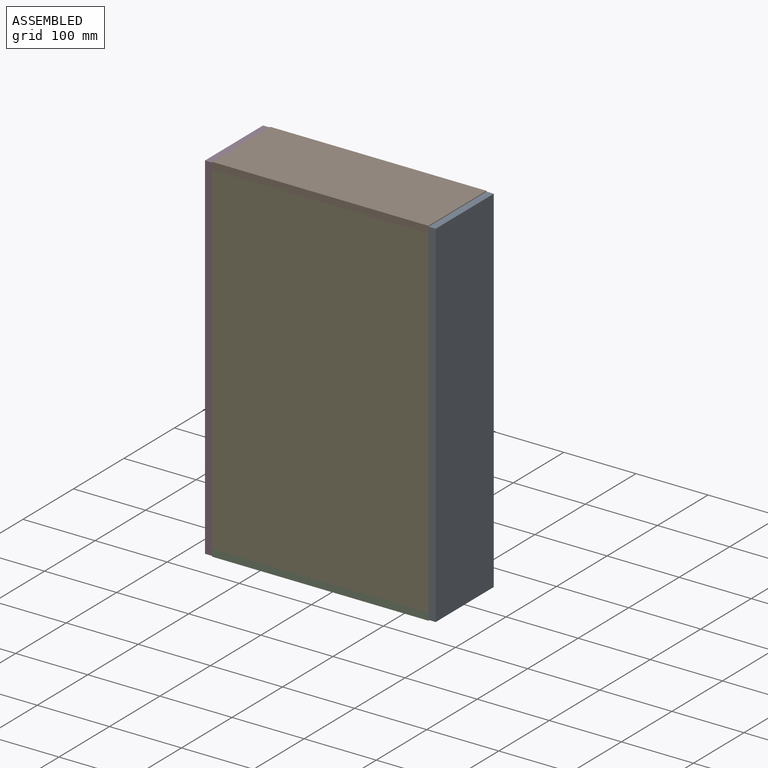
[diagram: assembled view]
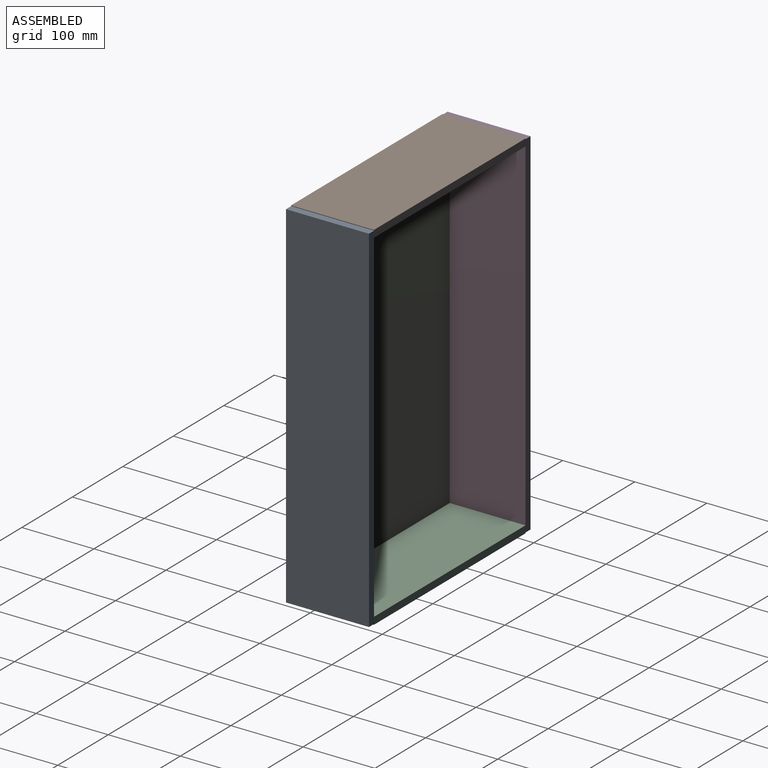
[diagram: assembled view, second angle]
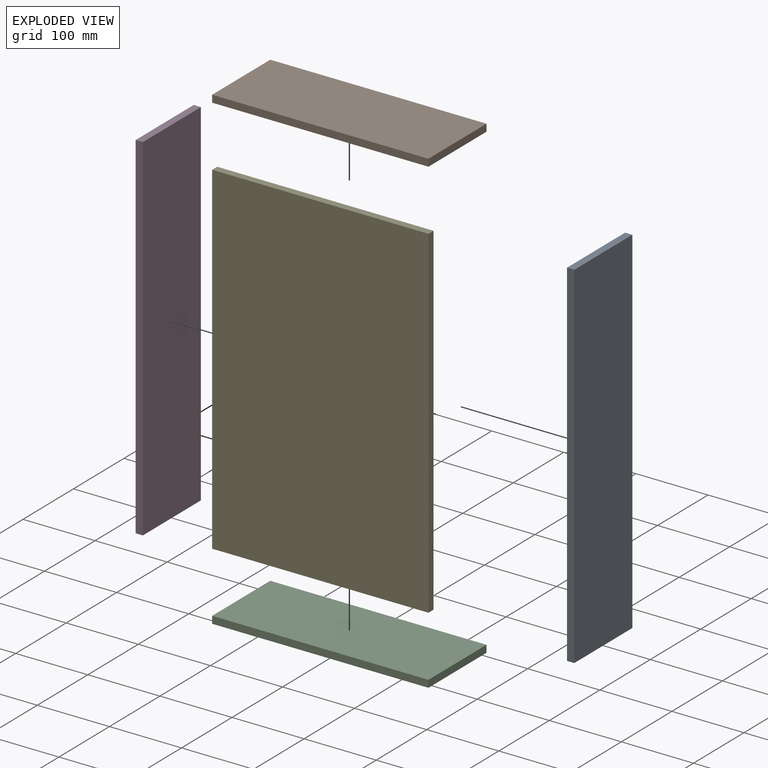
[diagram: exploded view]
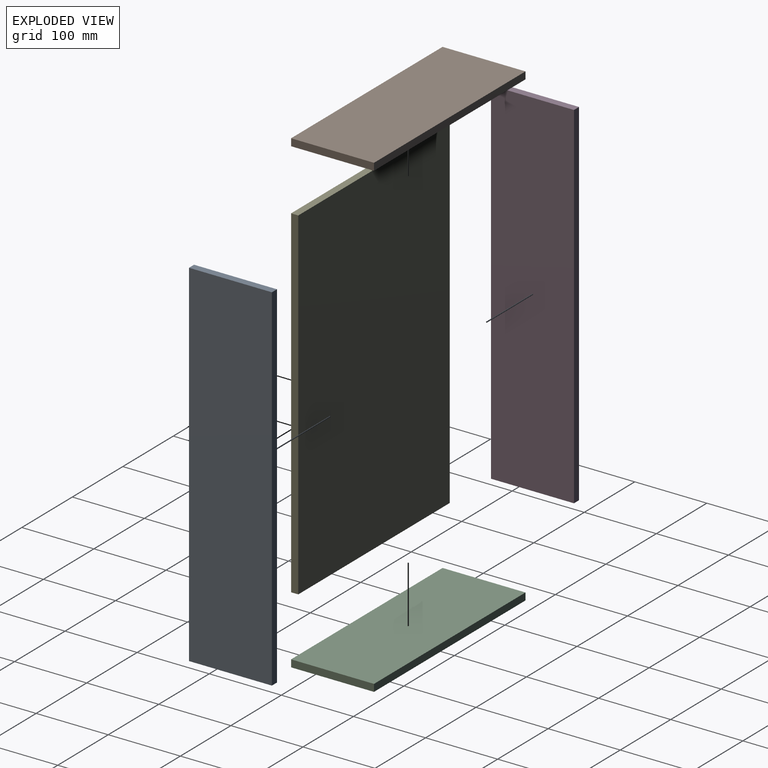
[diagram: exploded view, second angle]
ASSEMBLY  parts=5 mates=4
PART A: 6 faces, bbox 115x10x493 mm
  f0: plane 493x10mm, normal (-1,0,0), area 4930mm2, adj f1,f3,f4,f5
  f1: plane 115x10mm, normal (0,0,-1), area 1150mm2, adj f0,f2,f4,f5
  f2: plane 493x10mm, normal (1,0,0), area 4930mm2, adj f1,f3,f4,f5
  f3: plane 115x10mm, normal (0,0,1), area 1150mm2, adj f0,f2,f4,f5
  f4: plane 493x115mm, normal (0,-1,0), area 56695mm2, adj f0,f1,f2,f3
  f5: plane 493x115mm, normal (0,1,0), area 56695mm2, adj f0,f1,f2,f3
PART B: 6 faces, bbox 300x115x10 mm
  f0: plane 115x10mm, normal (-1,0,0), area 1150mm2, adj f1,f3,f4,f5
  f1: plane 300x10mm, normal (0,-1,0), area 3000mm2, adj f0,f2,f4,f5
  f2: plane 115x10mm, normal (1,0,0), area 1150mm2, adj f1,f3,f4,f5
  f3: plane 300x10mm, normal (0,1,0), area 3000mm2, adj f0,f2,f4,f5
  f4: plane 300x115mm, normal (0,0,1), area 34500mm2, adj f0,f1,f2,f3
  f5: plane 300x115mm, normal (0,0,-1), area 34500mm2, adj f0,f1,f2,f3
PART C: same geometry as B
PART D: same geometry as A
PART E: 6 faces, bbox 300x10x475 mm
  f0: plane 475x10mm, normal (-1,0,0), area 4750mm2, adj f1,f3,f4,f5
  f1: plane 300x10mm, normal (0,0,-1), area 3000mm2, adj f0,f2,f4,f5
  f2: plane 475x10mm, normal (1,0,0), area 4750mm2, adj f1,f3,f4,f5
  f3: plane 300x10mm, normal (0,0,1), area 3000mm2, adj f0,f2,f4,f5
  f4: plane 475x300mm, normal (0,-1,0), area 142500mm2, adj f0,f1,f2,f3
  f5: plane 475x300mm, normal (0,1,0), area 142500mm2, adj f0,f1,f2,f3
PLACE A rot(axis=(0,0,-1),90deg) t=(-541.67,-165.13,281.22)mm
PLACE B t=(-701.67,-165.13,518.72)mm
PLACE C t=(-701.67,-165.13,33.72)mm
PLACE D rot(axis=(0,0,-1),90deg) t=(-851.67,-165.13,281.22)mm
PLACE E t=(-701.67,-212.63,281.22)mm
MATE fastened C.f4 <-> E.f1  axis (0,0,1) through (-701.67,-222.63,43.72)mm
MATE fastened A.f4 <-> E.f2  axis (-1,0,0) through (-551.67,-222.63,281.22)mm
MATE fastened B.f5 <-> E.f3  axis (0,0,-1) through (-701.67,-222.63,518.72)mm
MATE fastened D.f5 <-> E.f0  axis (1,0,0) through (-851.67,-222.63,281.22)mm
